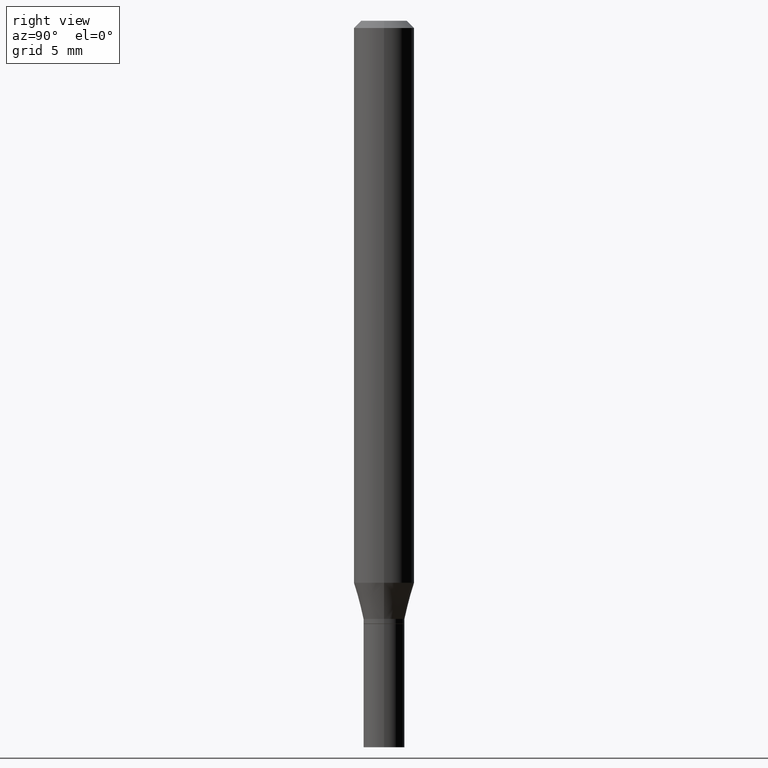
[diagram: clean part render]
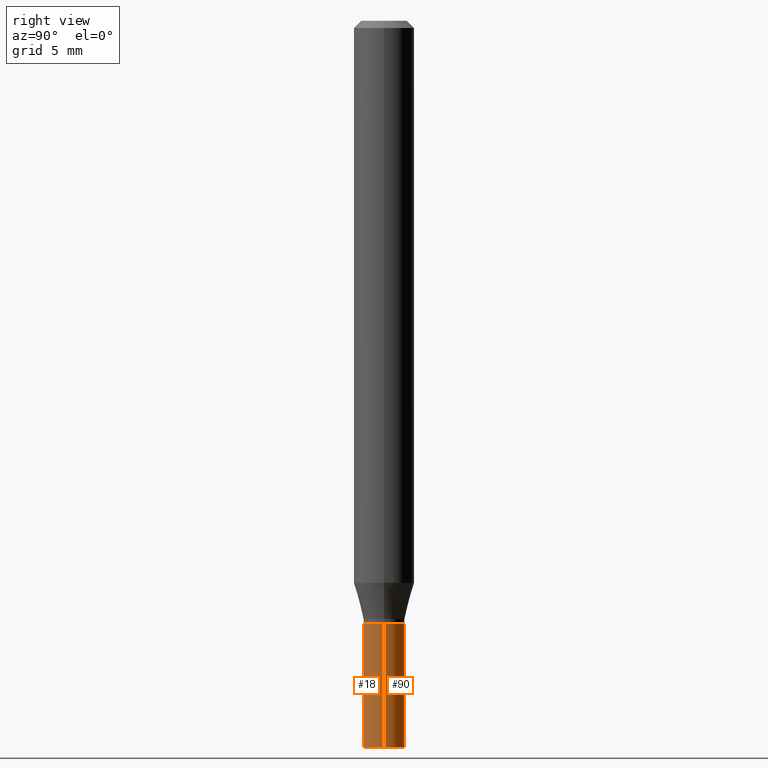
[diagram: same view with one multi-face feature highlighted, each face labeled with its STEP entity id]
A machine part, right view. The highlighted faces form ONE feature: a constant-radius fillet chain: 2 tangent blend faces with common blend radius 1.0795 mm. The faces share edges in the B-rep.
Their STEP definitions:
[1] entity #18 (Cylinder):
#10 = AXIS2_PLACEMENT_3D ( 'NONE', #223, #292, #148 ) ;
#18 = ADVANCED_FACE ( 'NONE', ( #450 ), #371, .T. ) ;
#24 = VERTEX_POINT ( 'NONE', #349 ) ;
#60 = ORIENTED_EDGE ( 'NONE', *, *, #313, .T. ) ;
#75 = CARTESIAN_POINT ( 'NONE',  ( 0.04249999999999999611, -5.533997922066385616E-15, -1.500000000000000222 ) ) ;
#78 = CARTESIAN_POINT ( 'NONE',  ( -0.04249999999999999611, 3.019806626980425514E-16, -2.090547413358334859E-30 ) ) ;
#96 = CIRCLE ( 'NONE', #412, 0.04249999999999999611 ) ;
#106 = VERTEX_POINT ( 'NONE', #75 ) ;
#110 = LINE ( 'NONE', #186, #445 ) ;
#117 = EDGE_CURVE ( 'NONE', #297, #409, #213, .T. ) ;
#122 = EDGE_CURVE ( 'NONE', #106, #409, #110, .T. ) ;
#130 = CARTESIAN_POINT ( 'NONE',  ( 0.000000000000000000, 0.000000000000000000, 0.000000000000000000 ) ) ;
#134 = EDGE_CURVE ( 'NONE', #24, #297, #428, .T. ) ;
#135 = ORIENTED_EDGE ( 'NONE', *, *, #122, .T. ) ;
#148 = DIRECTION ( 'NONE',  ( 1.000000000000000000, -6.982962677686265133E-15, 0.000000000000000000 ) ) ;
#186 = CARTESIAN_POINT ( 'NONE',  ( 0.04249999999999999611, -2.967759138016663549E-16, 2.072375129713272502E-30 ) ) ;
#188 = CARTESIAN_POINT ( 'NONE',  ( -0.04249999999999999611, -4.490077474864174959E-15, -1.245000000000000329 ) ) ;
#197 = AXIS2_PLACEMENT_3D ( 'NONE', #130, #377, #382 ) ;
#210 = ORIENTED_EDGE ( 'NONE', *, *, #117, .F. ) ;
#213 = CIRCLE ( 'NONE', #10, 0.04249999999999999611 ) ;
#223 = CARTESIAN_POINT ( 'NONE',  ( 3.044608663700495534E-29, -4.346894266859716647E-15, -1.245000000000000329 ) ) ;
#225 = CARTESIAN_POINT ( 'NONE',  ( 0.04249999999999999611, -4.643670180661383298E-15, -1.245000000000000329 ) ) ;
#238 = EDGE_LOOP ( 'NONE', ( #378, #60, #135, #210 ) ) ;
#252 = DIRECTION ( 'NONE',  ( -2.445468806185136877E-29, 3.491481338843145188E-15, 1.000000000000000000 ) ) ;
#264 = DIRECTION ( 'NONE',  ( 1.000000000000000000, -6.982962677686276177E-15, 0.000000000000000000 ) ) ;
#272 = DIRECTION ( 'NONE',  ( -2.445468806185136597E-29, 3.491481338843145583E-15, 1.000000000000000000 ) ) ;
#292 = DIRECTION ( 'NONE',  ( -2.445468806185136597E-29, 3.491481338843145583E-15, 1.000000000000000000 ) ) ;
#297 = VERTEX_POINT ( 'NONE', #188 ) ;
#313 = EDGE_CURVE ( 'NONE', #24, #106, #96, .T. ) ;
#349 = CARTESIAN_POINT ( 'NONE',  ( -0.04249999999999999611, -4.490077474864174959E-15, -1.500000000000000222 ) ) ;
#354 = DIRECTION ( 'NONE',  ( -2.445468806185136877E-29, 3.491481338843145188E-15, 1.000000000000000000 ) ) ;
#371 = CYLINDRICAL_SURFACE ( 'NONE', #197, 0.04249999999999999611 ) ;
#377 = DIRECTION ( 'NONE',  ( -2.445468806185136597E-29, 3.491481338843145583E-15, 1.000000000000000000 ) ) ;
#378 = ORIENTED_EDGE ( 'NONE', *, *, #134, .F. ) ;
#382 = DIRECTION ( 'NONE',  ( 1.000000000000000000, -6.982962677686267499E-15, 4.876176775795935793E-29 ) ) ;
#390 = VECTOR ( 'NONE', #252, 39.37007874015748143 ) ;
#406 = CARTESIAN_POINT ( 'NONE',  ( 3.668203209277704895E-29, -5.237222008264718177E-15, -1.500000000000000222 ) ) ;
#409 = VERTEX_POINT ( 'NONE', #225 ) ;
#412 = AXIS2_PLACEMENT_3D ( 'NONE', #406, #272, #264 ) ;
#428 = LINE ( 'NONE', #78, #390 ) ;
#445 = VECTOR ( 'NONE', #354, 39.37007874015748143 ) ;
#450 = FACE_OUTER_BOUND ( 'NONE', #238, .T. ) ;
[2] entity #90 (Cylinder):
#2 = EDGE_CURVE ( 'NONE', #409, #297, #368, .T. ) ;
#24 = VERTEX_POINT ( 'NONE', #349 ) ;
#40 = CYLINDRICAL_SURFACE ( 'NONE', #379, 0.04249999999999999611 ) ;
#46 = CARTESIAN_POINT ( 'NONE',  ( 3.668203209277704895E-29, -5.237222008264718177E-15, -1.500000000000000222 ) ) ;
#75 = CARTESIAN_POINT ( 'NONE',  ( 0.04249999999999999611, -5.533997922066385616E-15, -1.500000000000000222 ) ) ;
#78 = CARTESIAN_POINT ( 'NONE',  ( -0.04249999999999999611, 3.019806626980425514E-16, -2.090547413358334859E-30 ) ) ;
#88 = AXIS2_PLACEMENT_3D ( 'NONE', #46, #400, #359 ) ;
#90 = ADVANCED_FACE ( 'NONE', ( #253 ), #40, .T. ) ;
#106 = VERTEX_POINT ( 'NONE', #75 ) ;
#110 = LINE ( 'NONE', #186, #445 ) ;
#122 = EDGE_CURVE ( 'NONE', #106, #409, #110, .T. ) ;
#134 = EDGE_CURVE ( 'NONE', #24, #297, #428, .T. ) ;
#139 = ORIENTED_EDGE ( 'NONE', *, *, #122, .F. ) ;
#142 = CARTESIAN_POINT ( 'NONE',  ( 0.000000000000000000, 0.000000000000000000, 0.000000000000000000 ) ) ;
#178 = AXIS2_PLACEMENT_3D ( 'NONE', #285, #454, #310 ) ;
#186 = CARTESIAN_POINT ( 'NONE',  ( 0.04249999999999999611, -2.967759138016663549E-16, 2.072375129713272502E-30 ) ) ;
#188 = CARTESIAN_POINT ( 'NONE',  ( -0.04249999999999999611, -4.490077474864174959E-15, -1.245000000000000329 ) ) ;
#215 = DIRECTION ( 'NONE',  ( 1.000000000000000000, -6.982962677686267499E-15, 4.876176775795935793E-29 ) ) ;
#225 = CARTESIAN_POINT ( 'NONE',  ( 0.04249999999999999611, -4.643670180661383298E-15, -1.245000000000000329 ) ) ;
#252 = DIRECTION ( 'NONE',  ( -2.445468806185136877E-29, 3.491481338843145188E-15, 1.000000000000000000 ) ) ;
#253 = FACE_OUTER_BOUND ( 'NONE', #279, .T. ) ;
#277 = ORIENTED_EDGE ( 'NONE', *, *, #388, .T. ) ;
#279 = EDGE_LOOP ( 'NONE', ( #277, #307, #351, #139 ) ) ;
#285 = CARTESIAN_POINT ( 'NONE',  ( 3.044608663700495534E-29, -4.346894266859716647E-15, -1.245000000000000329 ) ) ;
#293 = CIRCLE ( 'NONE', #88, 0.04249999999999999611 ) ;
#297 = VERTEX_POINT ( 'NONE', #188 ) ;
#307 = ORIENTED_EDGE ( 'NONE', *, *, #134, .T. ) ;
#310 = DIRECTION ( 'NONE',  ( 1.000000000000000000, -6.982962677686265133E-15, 0.000000000000000000 ) ) ;
#349 = CARTESIAN_POINT ( 'NONE',  ( -0.04249999999999999611, -4.490077474864174959E-15, -1.500000000000000222 ) ) ;
#351 = ORIENTED_EDGE ( 'NONE', *, *, #2, .F. ) ;
#354 = DIRECTION ( 'NONE',  ( -2.445468806185136877E-29, 3.491481338843145188E-15, 1.000000000000000000 ) ) ;
#359 = DIRECTION ( 'NONE',  ( 1.000000000000000000, -6.982962677686276177E-15, 0.000000000000000000 ) ) ;
#368 = CIRCLE ( 'NONE', #178, 0.04249999999999999611 ) ;
#379 = AXIS2_PLACEMENT_3D ( 'NONE', #142, #433, #215 ) ;
#388 = EDGE_CURVE ( 'NONE', #106, #24, #293, .T. ) ;
#390 = VECTOR ( 'NONE', #252, 39.37007874015748143 ) ;
#400 = DIRECTION ( 'NONE',  ( -2.445468806185136597E-29, 3.491481338843145583E-15, 1.000000000000000000 ) ) ;
#409 = VERTEX_POINT ( 'NONE', #225 ) ;
#428 = LINE ( 'NONE', #78, #390 ) ;
#433 = DIRECTION ( 'NONE',  ( -2.445468806185136597E-29, 3.491481338843145583E-15, 1.000000000000000000 ) ) ;
#445 = VECTOR ( 'NONE', #354, 39.37007874015748143 ) ;
#454 = DIRECTION ( 'NONE',  ( -2.445468806185136597E-29, 3.491481338843145583E-15, 1.000000000000000000 ) ) ;